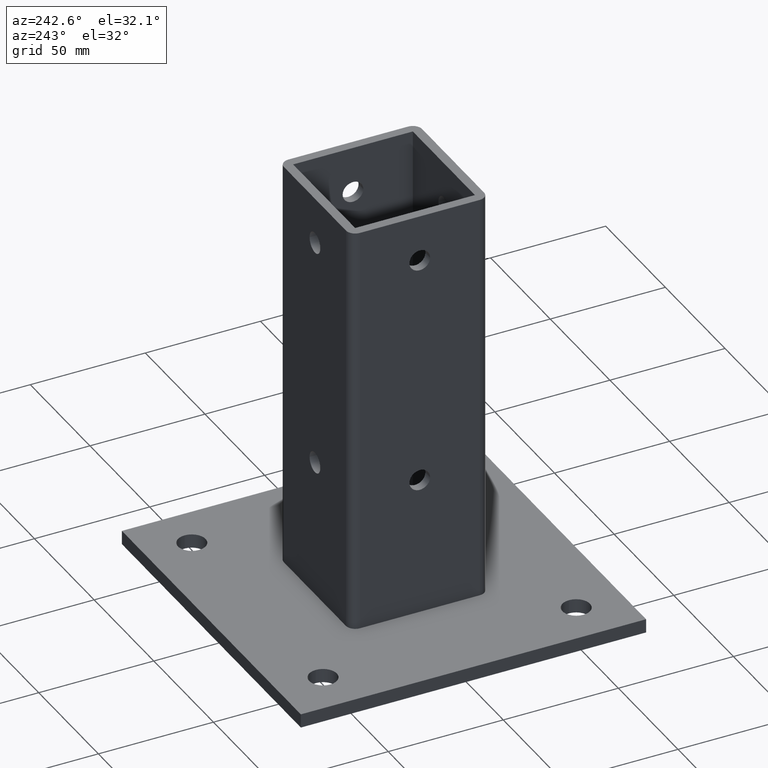
[diagram: clean part render]
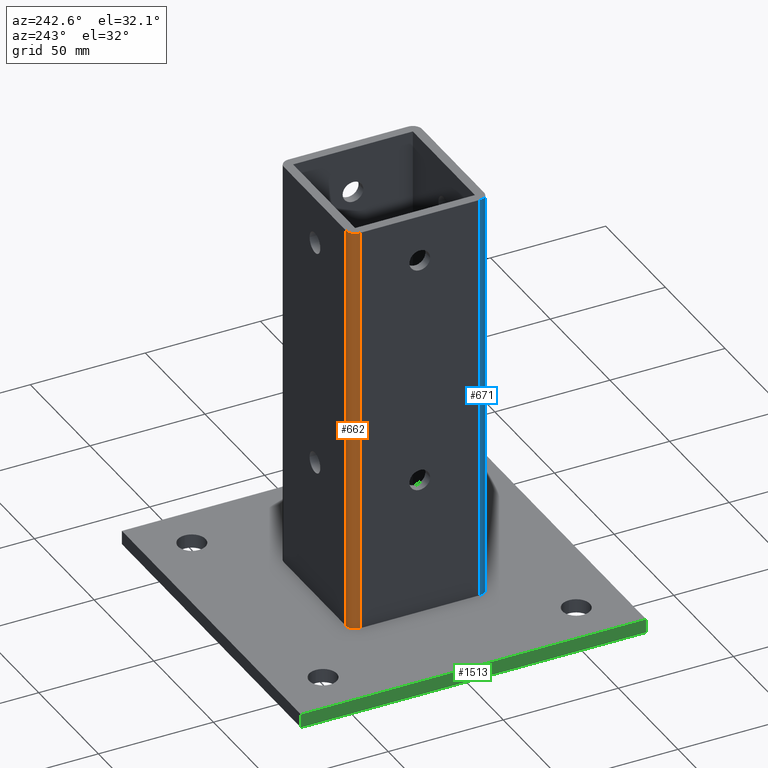
[diagram: same view with three faces highlighted in distinct colors, each labeled with its STEP entity id]
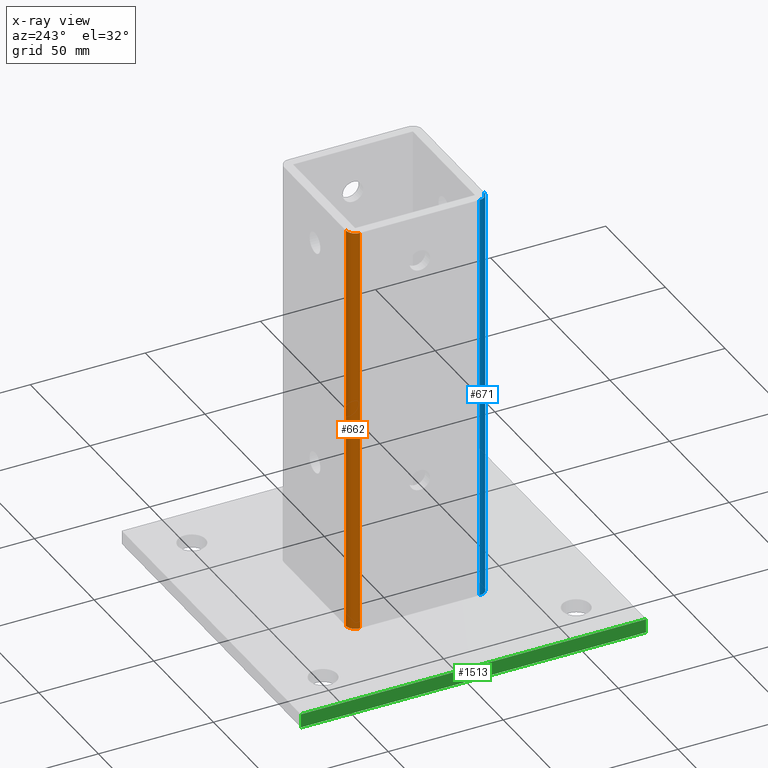
[diagram: x-ray of the same camera — body ghosted, the three highlighted faces saturated]
A machine part, auxiliary view with three faces highlighted in distinct colors.
The next image is the same camera in x-ray (body ghosted, the three faces saturated) — at least one of them is partly hidden behind the body in this view.
Their STEP definitions:

[orange] entity #662 — the highlighted cylindrical surface (edge-blend (fillet) strip) has radius 4 mm, axis along (0, -0, 1).
#23 = VERTEX_POINT ( 'NONE', #35 ) ;
#35 = CARTESIAN_POINT ( 'NONE',  ( -30.00000000000000400, 25.99999999917959000, 180.0000000000000000 ) ) ;
#86 = VERTEX_POINT ( 'NONE', #1413 ) ;
#101 = CARTESIAN_POINT ( 'NONE',  ( -26.00000000000000400, 30.00000000000000000, 180.0000000000000000 ) ) ;
#170 = CARTESIAN_POINT ( 'NONE',  ( -30.00000000000000700, 25.99999999835917600, 90.00000000000000000 ) ) ;
#171 = DIRECTION ( 'NONE',  ( -0.0000000000000000000, -0.0000000000000000000, -1.000000000000000000 ) ) ;
#212 = CARTESIAN_POINT ( 'NONE',  ( -26.00000000000000400, 26.00000000000000400, 180.0000000000000000 ) ) ;
#213 = DIRECTION ( 'NONE',  ( 0.0000000000000000000, -0.0000000000000000000, 1.000000000000000000 ) ) ;
#215 = DIRECTION ( 'NONE',  ( 1.000000000000000000, 0.0000000000000000000, 0.0000000000000000000 ) ) ;
#217 = CARTESIAN_POINT ( 'NONE',  ( -26.00000000000000400, 30.00000000000000000, 90.00000000000000000 ) ) ;
#219 = DIRECTION ( 'NONE',  ( 0.0000000000000000000, 0.0000000000000000000, 1.000000000000000000 ) ) ;
#304 = EDGE_CURVE ( 'NONE', #1549, #86, #957, .T. ) ;
#306 = EDGE_CURVE ( 'NONE', #556, #23, #960, .T. ) ;
#307 = EDGE_CURVE ( 'NONE', #86, #556, #959, .T. ) ;
#349 = EDGE_CURVE ( 'NONE', #23, #1549, #912, .T. ) ;
#418 = AXIS2_PLACEMENT_3D ( 'NONE', #212, #213, #215 ) ;
#420 = AXIS2_PLACEMENT_3D ( 'NONE', #1501, #1502, #1503 ) ;
#476 = CARTESIAN_POINT ( 'NONE',  ( -30.00000000000000000, 25.99999999917959000, 0.0000000000000000000 ) ) ;
#520 = CARTESIAN_POINT ( 'NONE',  ( -26.00000000000000400, 26.00000000000000400, 0.0000000000000000000 ) ) ;
#521 = DIRECTION ( 'NONE',  ( 0.0000000000000000000, -0.0000000000000000000, 1.000000000000000000 ) ) ;
#522 = DIRECTION ( 'NONE',  ( 1.000000000000000000, 0.0000000000000000000, 0.0000000000000000000 ) ) ;
#556 = VERTEX_POINT ( 'NONE', #101 ) ;
#662 = ADVANCED_FACE ( 'NONE', ( #1233 ), #1227, .T. ) ;
#851 = ORIENTED_EDGE ( 'NONE', *, *, #306, .F. ) ;
#852 = ORIENTED_EDGE ( 'NONE', *, *, #307, .F. ) ;
#853 = ORIENTED_EDGE ( 'NONE', *, *, #304, .F. ) ;
#854 = ORIENTED_EDGE ( 'NONE', *, *, #349, .F. ) ;
#910 = VECTOR ( 'NONE', #171, 1000.000000000000000 ) ;
#912 = LINE ( 'NONE', #170, #910 ) ;
#919 = EDGE_LOOP ( 'NONE', ( #851, #852, #853, #854 ) ) ;
#957 = CIRCLE ( 'NONE', #420, 4.000000000000003600 ) ;
#959 = LINE ( 'NONE', #217, #961 ) ;
#960 = CIRCLE ( 'NONE', #418, 4.000000000000003600 ) ;
#961 = VECTOR ( 'NONE', #219, 1000.000000000000000 ) ;
#1227 = CYLINDRICAL_SURFACE ( 'NONE', #1520, 4.000000000000003600 ) ;
#1233 = FACE_OUTER_BOUND ( 'NONE', #919, .T. ) ;
#1413 = CARTESIAN_POINT ( 'NONE',  ( -26.00000000000000400, 30.00000000000000000, 6.938893903907228400E-015 ) ) ;
#1501 = CARTESIAN_POINT ( 'NONE',  ( -26.00000000000000400, 26.00000000000000400, 0.0000000000000000000 ) ) ;
#1502 = DIRECTION ( 'NONE',  ( -0.0000000000000000000, 0.0000000000000000000, -1.000000000000000000 ) ) ;
#1503 = DIRECTION ( 'NONE',  ( 1.000000000000000000, 0.0000000000000000000, 0.0000000000000000000 ) ) ;
#1520 = AXIS2_PLACEMENT_3D ( 'NONE', #520, #521, #522 ) ;
#1549 = VERTEX_POINT ( 'NONE', #476 ) ;

[blue] entity #671 — the highlighted cylindrical surface (edge-blend (fillet) strip) has radius 4 mm, axis along (0, -0, 1).
#8 = AXIS2_PLACEMENT_3D ( 'NONE', #428, #429, #430 ) ;
#22 = VERTEX_POINT ( 'NONE', #34 ) ;
#25 = VERTEX_POINT ( 'NONE', #37 ) ;
#34 = CARTESIAN_POINT ( 'NONE',  ( -26.00000000000000400, -30.00000000000000000, 3.469446951953614200E-015 ) ) ;
#37 = CARTESIAN_POINT ( 'NONE',  ( -30.00000000000000000, -26.00000000082041400, 0.0000000000000000000 ) ) ;
#92 = CARTESIAN_POINT ( 'NONE',  ( -26.00000000000000400, -30.00000000000000000, 180.0000000000000000 ) ) ;
#190 = CARTESIAN_POINT ( 'NONE',  ( -26.00000000000000400, -30.00000000000000000, 90.00000000000000000 ) ) ;
#191 = DIRECTION ( 'NONE',  ( 0.0000000000000000000, 0.0000000000000000000, -1.000000000000000000 ) ) ;
#192 = CARTESIAN_POINT ( 'NONE',  ( -30.00000000000000700, -26.00000000164082800, 90.00000000000000000 ) ) ;
#193 = DIRECTION ( 'NONE',  ( 0.0000000000000000000, 0.0000000000000000000, 1.000000000000000000 ) ) ;
#358 = EDGE_CURVE ( 'NONE', #427, #22, #822, .T. ) ;
#359 = EDGE_CURVE ( 'NONE', #25, #1546, #1005, .T. ) ;
#383 = EDGE_CURVE ( 'NONE', #1546, #427, #976, .T. ) ;
#385 = EDGE_CURVE ( 'NONE', #22, #25, #974, .T. ) ;
#427 = VERTEX_POINT ( 'NONE', #92 ) ;
#428 = CARTESIAN_POINT ( 'NONE',  ( -26.00000000000000400, -26.00000000000000400, 0.0000000000000000000 ) ) ;
#429 = DIRECTION ( 'NONE',  ( 0.0000000000000000000, -0.0000000000000000000, 1.000000000000000000 ) ) ;
#430 = DIRECTION ( 'NONE',  ( 1.000000000000000000, 0.0000000000000000000, 0.0000000000000000000 ) ) ;
#638 = CARTESIAN_POINT ( 'NONE',  ( -30.00000000000000000, -26.00000000082041400, 180.0000000000000000 ) ) ;
#671 = ADVANCED_FACE ( 'NONE', ( #1247 ), #1236, .T. ) ;
#704 = ORIENTED_EDGE ( 'NONE', *, *, #383, .F. ) ;
#705 = ORIENTED_EDGE ( 'NONE', *, *, #359, .F. ) ;
#706 = ORIENTED_EDGE ( 'NONE', *, *, #385, .F. ) ;
#707 = ORIENTED_EDGE ( 'NONE', *, *, #358, .F. ) ;
#797 = EDGE_LOOP ( 'NONE', ( #704, #705, #706, #707 ) ) ;
#822 = LINE ( 'NONE', #190, #1008 ) ;
#974 = CIRCLE ( 'NONE', #1137, 4.000000000000003600 ) ;
#976 = CIRCLE ( 'NONE', #1138, 4.000000000000003600 ) ;
#1005 = LINE ( 'NONE', #192, #1101 ) ;
#1008 = VECTOR ( 'NONE', #191, 1000.000000000000000 ) ;
#1101 = VECTOR ( 'NONE', #193, 1000.000000000000000 ) ;
#1137 = AXIS2_PLACEMENT_3D ( 'NONE', #1315, #1316, #1317 ) ;
#1138 = AXIS2_PLACEMENT_3D ( 'NONE', #1310, #1311, #1312 ) ;
#1236 = CYLINDRICAL_SURFACE ( 'NONE', #8, 4.000000000000003600 ) ;
#1247 = FACE_OUTER_BOUND ( 'NONE', #797, .T. ) ;
#1310 = CARTESIAN_POINT ( 'NONE',  ( -26.00000000000000400, -26.00000000000000400, 180.0000000000000000 ) ) ;
#1311 = DIRECTION ( 'NONE',  ( 0.0000000000000000000, -0.0000000000000000000, 1.000000000000000000 ) ) ;
#1312 = DIRECTION ( 'NONE',  ( 1.000000000000000000, 0.0000000000000000000, 0.0000000000000000000 ) ) ;
#1315 = CARTESIAN_POINT ( 'NONE',  ( -26.00000000000000400, -26.00000000000000400, 0.0000000000000000000 ) ) ;
#1316 = DIRECTION ( 'NONE',  ( -0.0000000000000000000, 0.0000000000000000000, -1.000000000000000000 ) ) ;
#1317 = DIRECTION ( 'NONE',  ( 1.000000000000000000, 0.0000000000000000000, 0.0000000000000000000 ) ) ;
#1546 = VERTEX_POINT ( 'NONE', #638 ) ;

[green] entity #1513 — the highlighted planar face has unit normal (-1, 0, 0).
#18 = AXIS2_PLACEMENT_3D ( 'NONE', #623, #624, #625 ) ;
#24 = VERTEX_POINT ( 'NONE', #36 ) ;
#36 = CARTESIAN_POINT ( 'NONE',  ( -75.00000000000000000, 75.00000000000000000, 0.0000000000000000000 ) ) ;
#90 = CARTESIAN_POINT ( 'NONE',  ( -75.00000000000000000, 75.00000000000000000, -6.000000000000000000 ) ) ;
#135 = CARTESIAN_POINT ( 'NONE',  ( -75.00000000000000000, 75.00000000000000000, -3.000000000000000000 ) ) ;
#136 = DIRECTION ( 'NONE',  ( -0.0000000000000000000, -0.0000000000000000000, -1.000000000000000000 ) ) ;
#184 = CARTESIAN_POINT ( 'NONE',  ( -75.00000000000000000, 0.0000000000000000000, 0.0000000000000000000 ) ) ;
#185 = DIRECTION ( 'NONE',  ( -0.0000000000000000000, -1.000000000000000000, -0.0000000000000000000 ) ) ;
#188 = CARTESIAN_POINT ( 'NONE',  ( -75.00000000000000000, -75.00000000000000000, -3.000000000000000000 ) ) ;
#189 = DIRECTION ( 'NONE',  ( 0.0000000000000000000, 0.0000000000000000000, -1.000000000000000000 ) ) ;
#336 = EDGE_CURVE ( 'NONE', #24, #425, #1111, .T. ) ;
#355 = EDGE_CURVE ( 'NONE', #24, #1430, #756, .T. ) ;
#357 = EDGE_CURVE ( 'NONE', #1430, #1547, #830, .T. ) ;
#364 = EDGE_CURVE ( 'NONE', #425, #1547, #1010, .T. ) ;
#425 = VERTEX_POINT ( 'NONE', #90 ) ;
#565 = CARTESIAN_POINT ( 'NONE',  ( -75.00000000000000000, 0.0000000000000000000, -6.000000000000000000 ) ) ;
#566 = DIRECTION ( 'NONE',  ( -0.0000000000000000000, -1.000000000000000000, -0.0000000000000000000 ) ) ;
#600 = CARTESIAN_POINT ( 'NONE',  ( -75.00000000000000000, -75.00000000000000000, 0.0000000000000000000 ) ) ;
#622 = PLANE ( 'NONE',  #18 ) ;
#623 = CARTESIAN_POINT ( 'NONE',  ( -75.00000000000000000, -75.00000000000000000, -6.000000000000000000 ) ) ;
#624 = DIRECTION ( 'NONE',  ( -1.000000000000000000, 0.0000000000000000000, 0.0000000000000000000 ) ) ;
#625 = DIRECTION ( 'NONE',  ( 0.0000000000000000000, 0.0000000000000000000, 1.000000000000000000 ) ) ;
#639 = CARTESIAN_POINT ( 'NONE',  ( -75.00000000000000000, -75.00000000000000000, -6.000000000000000000 ) ) ;
#756 = LINE ( 'NONE', #184, #855 ) ;
#823 = VECTOR ( 'NONE', #189, 1000.000000000000000 ) ;
#830 = LINE ( 'NONE', #188, #823 ) ;
#855 = VECTOR ( 'NONE', #185, 1000.000000000000000 ) ;
#929 = ORIENTED_EDGE ( 'NONE', *, *, #355, .F. ) ;
#930 = ORIENTED_EDGE ( 'NONE', *, *, #357, .F. ) ;
#1010 = LINE ( 'NONE', #565, #1011 ) ;
#1011 = VECTOR ( 'NONE', #566, 1000.000000000000000 ) ;
#1111 = LINE ( 'NONE', #135, #1113 ) ;
#1113 = VECTOR ( 'NONE', #136, 1000.000000000000000 ) ;
#1225 = FACE_OUTER_BOUND ( 'NONE', #1389, .T. ) ;
#1381 = ORIENTED_EDGE ( 'NONE', *, *, #336, .T. ) ;
#1382 = ORIENTED_EDGE ( 'NONE', *, *, #364, .T. ) ;
#1389 = EDGE_LOOP ( 'NONE', ( #1381, #1382, #930, #929 ) ) ;
#1430 = VERTEX_POINT ( 'NONE', #600 ) ;
#1513 = ADVANCED_FACE ( 'NONE', ( #1225 ), #622, .T. ) ;
#1547 = VERTEX_POINT ( 'NONE', #639 ) ;